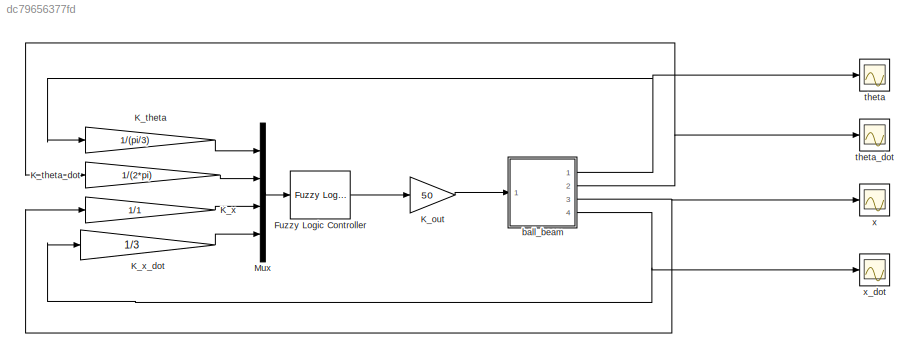
MODEL slx_dc79656377fd
KIND model
CONFIG AbsTol = auto
CONFIG EnableMultiTasking = on
CONFIG FixedStep = auto
CONFIG MaxStep = auto
CONFIG MinStep = auto
CONFIG RelTol = 1e-3
CONFIG SampleTimeConstraint = Unconstrained
CONFIG Solver = ode45
CONFIG SolverName = ode45
CONFIG StartTime = 0.0
CONFIG StopTime = 20
BLOCK [Reference] Fuzzy Logic Controller  REF=fuzblock/Fuzzy Logic   (lib defined in mdl_858b3b3e7478)
Controller
  Ports = [1, 1]
  SourceBlock = fuzblock/Fuzzy Logic \nController
  SourceType = FIS
BLOCK [Gain] K_out
  Gain = 50
  OutDataTypeStr = Inherit: Inherit via internal rule
  ParamDataTypeStr = Inherit: Inherit via internal rule
  SaturateOnIntegerOverflow = off
BLOCK [Gain] K_theta
  Gain = 1/(pi/3)
  OutDataTypeStr = Inherit: Inherit via internal rule
  ParamDataTypeStr = Inherit: Inherit via internal rule
  SaturateOnIntegerOverflow = off
BLOCK [Gain] K_theta_dot
  Gain = 1/(2*pi)
  OutDataTypeStr = Inherit: Inherit via internal rule
  ParamDataTypeStr = Inherit: Inherit via internal rule
  SaturateOnIntegerOverflow = off
BLOCK [Gain] K_x
  Gain = 1/1
  OutDataTypeStr = Inherit: Inherit via internal rule
  ParamDataTypeStr = Inherit: Inherit via internal rule
  SaturateOnIntegerOverflow = off
BLOCK [Gain] K_x_dot
  Gain = 1/3
  OutDataTypeStr = Inherit: Inherit via internal rule
  ParamDataTypeStr = Inherit: Inherit via internal rule
  SaturateOnIntegerOverflow = off
BLOCK [Mux] Mux
  DisplayOption = bar
  Ports = [4, 1]
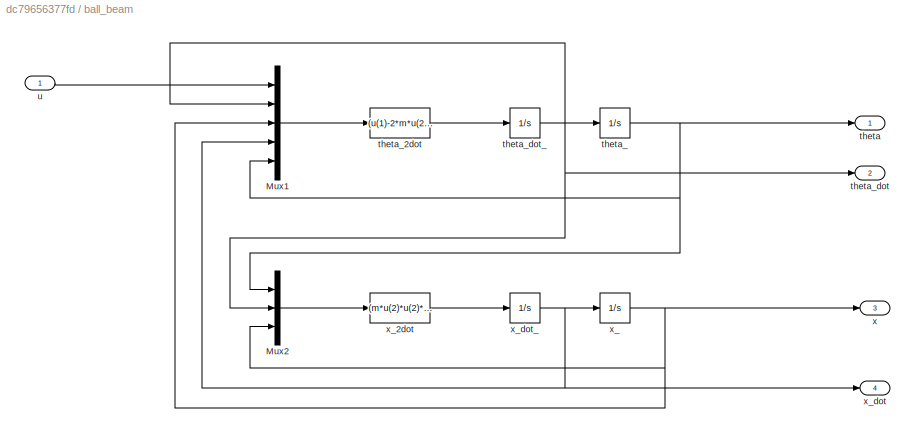
BLOCK [SubSystem] ball_beam
  Ports = [1, 4]
  RequestExecContextInheritance = off
  Variant = off
BLOCK [Mux] ball_beam/Mux1
  DisplayOption = bar
  Inputs = 5
  Ports = [5, 1]
BLOCK [Mux] ball_beam/Mux2
  DisplayOption = bar
  Inputs = 3
  Ports = [3, 1]
BLOCK [Outport] ball_beam/theta
  IconDisplay = Port number
BLOCK [Integrator] ball_beam/theta_
  InitialCondition = init_cond(1)
  Ports = [1, 1]
BLOCK [Fcn] ball_beam/theta_2dot
  Expr = (u(1)-2*m*u(2)*u(3)*u(4)-m*g*u(3)*cos(u(5)))/(JB+m*u(3)*u(3))
BLOCK [Outport] ball_beam/theta_dot
  IconDisplay = Port number
  Port = 2
BLOCK [Integrator] ball_beam/theta_dot_
  InitialCondition = init_cond(2)
  Ports = [1, 1]
BLOCK [Inport] ball_beam/u
  IconDisplay = Port number
BLOCK [Outport] ball_beam/x
  IconDisplay = Port number
  Port = 3
BLOCK [Integrator] ball_beam/x_
  InitialCondition = init_cond(3)
  Ports = [1, 1]
BLOCK [Fcn] ball_beam/x_2dot
  Expr = (m*u(2)*u(2)*u(3)-m*g*sin(u(1)))/(J/(R*R)+m)
BLOCK [Outport] ball_beam/x_dot
  IconDisplay = Port number
  Port = 4
BLOCK [Integrator] ball_beam/x_dot_
  InitialCondition = init_cond(4)
  Ports = [1, 1]
BLOCK [Scope] theta
  NumInputPorts = 1
  Ports = [1]
  ScopeSpecificationString = Simulink.scopes.TimeScopeBlockCfg('CurrentConfiguration', extmgr.ConfigurationSet(extmgr.Configuration('Core','General UI',true),extmgr.Configuration('Core','Source UI',true),extmgr.Configuration('Sources','WiredSimulink',true,'DataLoggingLimitDataPoints',true,'DataLoggingSaveFormat','Array','DataLoggingDecimation','1','DataLoggingDecimateData',true),extmgr.Configuration('Visuals','Time Domain',tr...<+1535ch>
BLOCK [Scope] theta_dot
  NumInputPorts = 1
  Ports = [1]
  ScopeSpecificationString = Simulink.scopes.TimeScopeBlockCfg('CurrentConfiguration', extmgr.ConfigurationSet(extmgr.Configuration('Core','General UI',true),extmgr.Configuration('Core','Source UI',true),extmgr.Configuration('Sources','WiredSimulink',true,'DataLoggingVariableName','ScopeData1','DataLoggingLimitDataPoints',true,'DataLoggingSaveFormat','Array','DataLoggingDecimation','1','DataLoggingDecimateData',true),extmgr.C...<+1571ch>
BLOCK [Scope] x
  NumInputPorts = 1
  Ports = [1]
  ScopeSpecificationString = Simulink.scopes.TimeScopeBlockCfg('CurrentConfiguration', extmgr.ConfigurationSet(extmgr.Configuration('Core','General UI',true),extmgr.Configuration('Core','Source UI',true),extmgr.Configuration('Sources','WiredSimulink',true,'DataLoggingVariableName','ScopeData2','DataLoggingLimitDataPoints',true,'DataLoggingSaveFormat','Array','DataLoggingDecimation','1','DataLoggingDecimateData',true),extmgr.C...<+1594ch>
BLOCK [Scope] x_dot
  NumInputPorts = 1
  Ports = [1]
  ScopeSpecificationString = Simulink.scopes.TimeScopeBlockCfg('CurrentConfiguration', extmgr.ConfigurationSet(extmgr.Configuration('Core','General UI',true),extmgr.Configuration('Core','Source UI',true),extmgr.Configuration('Sources','WiredSimulink',true,'DataLoggingVariableName','ScopeData3','DataLoggingLimitDataPoints',true,'DataLoggingSaveFormat','Array','DataLoggingDecimation','1','DataLoggingDecimateData',true),extmgr.C...<+1593ch>
LINE Fuzzy Logic Controller:1 -> K_out:1
LINE K_out:1 -> ball_beam:1
LINE K_theta:1 -> Mux:1
LINE K_theta_dot:1 -> Mux:2
LINE K_x:1 -> Mux:3
LINE K_x_dot:1 -> Mux:4
LINE Mux:1 -> Fuzzy Logic Controller:1
LINE ball_beam/Mux1:1 -> ball_beam/theta_2dot:1
LINE ball_beam/Mux2:1 -> ball_beam/x_2dot:1
LINE ball_beam/theta_2dot:1 -> ball_beam/theta_dot_:1
NET ball_beam/theta_:1 -> ball_beam/Mux1:5, ball_beam/Mux2:1, ball_beam/theta:1
NET ball_beam/theta_dot_:1 -> ball_beam/Mux1:2, ball_beam/Mux2:2, ball_beam/theta_:1, ball_beam/theta_dot:1
LINE ball_beam/u:1 -> ball_beam/Mux1:1
LINE ball_beam/x_2dot:1 -> ball_beam/x_dot_:1
NET ball_beam/x_:1 -> ball_beam/Mux1:3, ball_beam/Mux2:3, ball_beam/x:1
NET ball_beam/x_dot_:1 -> ball_beam/Mux1:4, ball_beam/x_:1, ball_beam/x_dot:1
NET ball_beam:1 -> K_theta:1, theta:1
NET ball_beam:2 -> K_theta_dot:1, theta_dot:1
NET ball_beam:3 -> K_x:1, x:1
NET ball_beam:4 -> K_x_dot:1, x_dot:1
note: NET lines group one-source signal fan-out (src -> all destinations, sorted); 1:1 wires keep LINE
